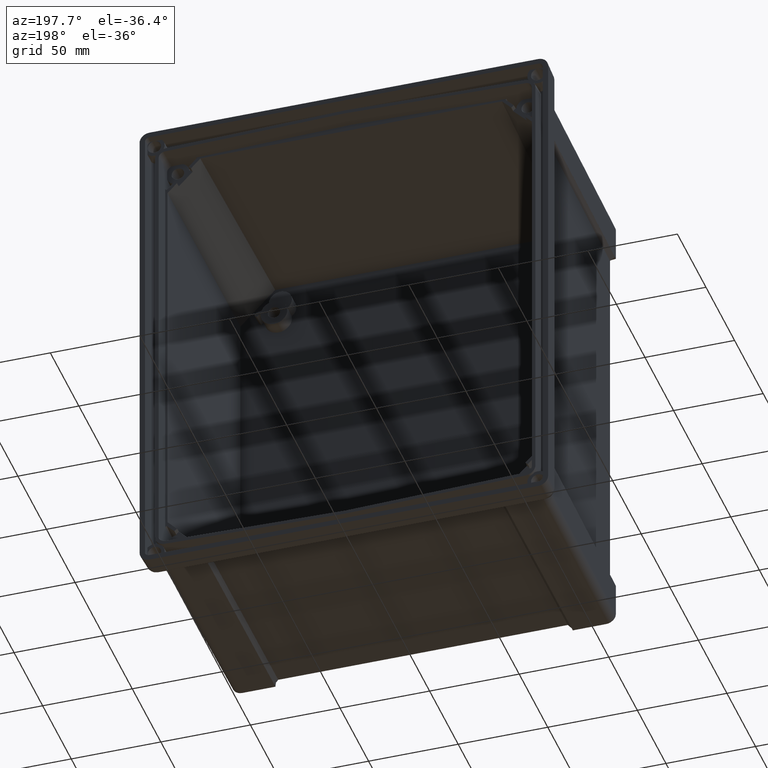
[diagram: clean part render]
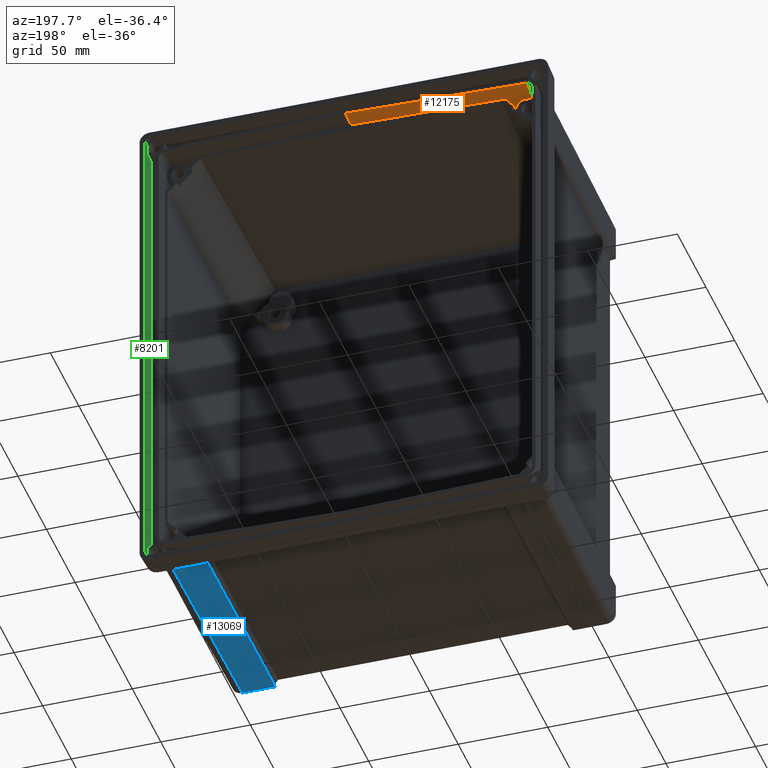
[diagram: same view with three faces highlighted in distinct colors, each labeled with its STEP entity id]
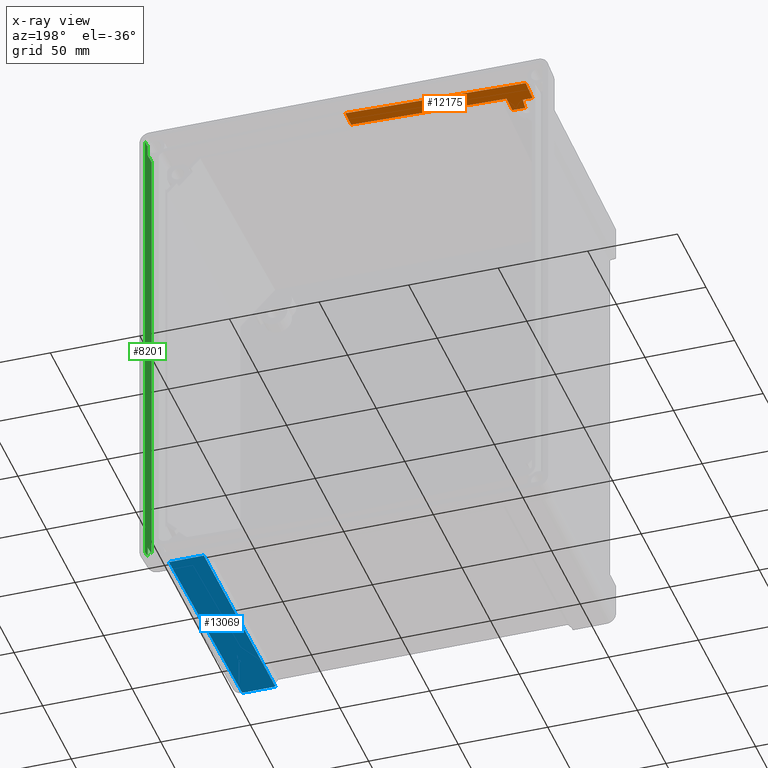
[diagram: x-ray of the same camera — body ghosted, the three highlighted faces saturated]
A machine part, auxiliary view with three faces highlighted in distinct colors.
The next image is the same camera in x-ray (body ghosted, the three faces saturated) — at least one of them is partly hidden behind the body in this view.
Their STEP definitions:

[orange] entity #12175 — the highlighted planar face has unit normal (0.0262, 0.0349, -0.999).
#17 = VERTEX_POINT ( 'NONE', #8950 ) ;
#80 = DIRECTION ( 'NONE',  ( 0.02616100201824144900, 0.03489949670250105200, -0.9990483607430191700 ) ) ;
#187 = EDGE_CURVE ( 'NONE', #10288, #1638, #6947, .T. ) ;
#423 = LINE ( 'NONE', #13724, #3786 ) ;
#609 = DIRECTION ( 'NONE',  ( -0.03487934512674304600, 0.9988137613916394700, 0.03397795370846538200 ) ) ;
#762 = B_SPLINE_CURVE_WITH_KNOTS ( 'NONE', 3,
 ( #11580, #6959, #8116, #11539 ),
 .UNSPECIFIED., .F., .F.,
 ( 4, 4 ),
 ( 2.013173519823810100E-007, 0.007269844731779964900 ),
 .UNSPECIFIED. ) ;
#980 = LINE ( 'NONE', #7053, #1750 ) ;
#1111 = ORIENTED_EDGE ( 'NONE', *, *, #9292, .T. ) ;
#1177 = PLANE ( 'NONE',  #1202 ) ;
#1202 = AXIS2_PLACEMENT_3D ( 'NONE', #9645, #80, #2320 ) ;
#1270 = DIRECTION ( 'NONE',  ( -0.003659257267767887700, 0.9993870572952563400, 0.03481550727730746400 ) ) ;
#1278 = EDGE_LOOP ( 'NONE', ( #7072, #5226, #1111, #8933, #9441, #8083, #11161, #4858, #5528 ) ) ;
#1478 = VERTEX_POINT ( 'NONE', #7876 ) ;
#1500 = LINE ( 'NONE', #10270, #7182 ) ;
#1638 = VERTEX_POINT ( 'NONE', #1976 ) ;
#1667 = CARTESIAN_POINT ( 'NONE',  ( -86.66061782242218200, -12.79291351792849900, 128.6153387022361000 ) ) ;
#1750 = VECTOR ( 'NONE', #8164, 1000.000000000000100 ) ;
#1976 = CARTESIAN_POINT ( 'NONE',  ( -100.7403973115087900, -2.500000000000000000, 128.6062063733010600 ) ) ;
#2110 = VERTEX_POINT ( 'NONE', #6950 ) ;
#2320 = DIRECTION ( 'NONE',  ( 0.0000000000000000000, 0.9993904096895385200, 0.03491144540944078600 ) ) ;
#2843 = CARTESIAN_POINT ( 'NONE',  ( -1.903887510668137200E-014, -12.79291351792850400, 130.8846268436713300 ) ) ;
#3349 = LINE ( 'NONE', #11023, #5266 ) ;
#3702 = CARTESIAN_POINT ( 'NONE',  ( -86.69664986141774000, -2.952131417889984500, 128.9581606532682900 ) ) ;
#3786 = VECTOR ( 'NONE', #13562, 1000.000000000000100 ) ;
#4248 = CARTESIAN_POINT ( 'NONE',  ( -104.1109589307087500, -23.00000000000000000, 127.8018239396758100 ) ) ;
#4588 = DIRECTION ( 'NONE',  ( -0.9996573249755572600, -0.0000000000000000000, -0.02617694830787313200 ) ) ;
#4609 = EDGE_CURVE ( 'NONE', #1478, #1638, #1500, .T. ) ;
#4858 = ORIENTED_EDGE ( 'NONE', *, *, #10635, .F. ) ;
#5192 = VECTOR ( 'NONE', #15142, 1000.000000000000100 ) ;
#5226 = ORIENTED_EDGE ( 'NONE', *, *, #8608, .T. ) ;
#5266 = VECTOR ( 'NONE', #8545, 1000.000000000000000 ) ;
#5346 = VECTOR ( 'NONE', #10000, 1000.000000000000200 ) ;
#5462 = FACE_OUTER_BOUND ( 'NONE', #1278, .T. ) ;
#5511 = CARTESIAN_POINT ( 'NONE',  ( -1.800180194346105700E-014, -2.500000000000000000, 131.2441865161489700 ) ) ;
#5528 = ORIENTED_EDGE ( 'NONE', *, *, #15014, .T. ) ;
#5733 = LINE ( 'NONE', #7568, #5346 ) ;
#6684 = VERTEX_POINT ( 'NONE', #7434 ) ;
#6772 = VECTOR ( 'NONE', #4588, 1000.000000000000100 ) ;
#6947 = LINE ( 'NONE', #7210, #6772 ) ;
#6950 = CARTESIAN_POINT ( 'NONE',  ( -94.87818586973176600, -15.79291351792850400, 128.2953558896519200 ) ) ;
#6959 = CARTESIAN_POINT ( 'NONE',  ( -94.22402692991205700, -20.59264232381585900, 128.1448179655645600 ) ) ;
#7053 = CARTESIAN_POINT ( 'NONE',  ( -99.45715315974962300, -15.79291351792850400, 128.1754514113276300 ) ) ;
#7072 = ORIENTED_EDGE ( 'NONE', *, *, #14139, .T. ) ;
#7182 = VECTOR ( 'NONE', #609, 1000.000000000000100 ) ;
#7210 = CARTESIAN_POINT ( 'NONE',  ( -104.1296983738548100, -2.500000000000000000, 128.5174544015081000 ) ) ;
#7247 = LINE ( 'NONE', #4248, #5192 ) ;
#7342 = VERTEX_POINT ( 'NONE', #2843 ) ;
#7369 = VERTEX_POINT ( 'NONE', #1667 ) ;
#7434 = CARTESIAN_POINT ( 'NONE',  ( -100.3790396424341900, -15.79291351792850400, 128.1513109641963400 ) ) ;
#7568 = CARTESIAN_POINT ( 'NONE',  ( -100.3817819999677700, -12.79291351792850400, 128.2560373732449900 ) ) ;
#7876 = CARTESIAN_POINT ( 'NONE',  ( -100.3815767111774300, -12.79291351792850400, 128.2560426886879800 ) ) ;
#8083 = ORIENTED_EDGE ( 'NONE', *, *, #11844, .T. ) ;
#8116 = CARTESIAN_POINT ( 'NONE',  ( -94.52166425399794000, -18.18872925819711400, 128.2209993282104700 ) ) ;
#8164 = DIRECTION ( 'NONE',  ( -0.9996573249755573700, -0.0000000000000000000, -0.02617694830786865600 ) ) ;
#8245 = CARTESIAN_POINT ( 'NONE',  ( -86.62324455936101200, -23.00000000000000400, 128.2597558566282600 ) ) ;
#8545 = DIRECTION ( 'NONE',  ( 0.0000000000000000000, -0.9993904096895385200, -0.03491144540944078600 ) ) ;
#8608 = EDGE_CURVE ( 'NONE', #2110, #6684, #980, .T. ) ;
#8933 = ORIENTED_EDGE ( 'NONE', *, *, #4609, .T. ) ;
#8950 = CARTESIAN_POINT ( 'NONE',  ( -93.95143904429814100, -23.00000000000000000, 128.0678603306019500 ) ) ;
#9249 = EDGE_CURVE ( 'NONE', #7369, #7342, #423, .T. ) ;
#9292 = EDGE_CURVE ( 'NONE', #6684, #1478, #5733, .T. ) ;
#9441 = ORIENTED_EDGE ( 'NONE', *, *, #187, .F. ) ;
#9645 = CARTESIAN_POINT ( 'NONE',  ( -104.1292413142658800, -3.000000000000000000, 128.5000000000000000 ) ) ;
#10000 = DIRECTION ( 'NONE',  ( -0.0009135623211521280400, 0.9993908270190956500, 0.03488753751661548300 ) ) ;
#10160 = VERTEX_POINT ( 'NONE', #8245 ) ;
#10270 = CARTESIAN_POINT ( 'NONE',  ( -100.7444356046739500, -2.384358414091373400, 128.6101403043347200 ) ) ;
#10288 = VERTEX_POINT ( 'NONE', #5511 ) ;
#10565 = LINE ( 'NONE', #3702, #12047 ) ;
#10635 = EDGE_CURVE ( 'NONE', #10160, #7369, #10565, .T. ) ;
#11023 = CARTESIAN_POINT ( 'NONE',  ( -1.826242724862605300E-014, -3.000000000000000000, 131.2267201461143000 ) ) ;
#11161 = ORIENTED_EDGE ( 'NONE', *, *, #9249, .F. ) ;
#11539 = CARTESIAN_POINT ( 'NONE',  ( -94.87818586973176600, -15.79291351792850400, 128.2953558896519200 ) ) ;
#11580 = CARTESIAN_POINT ( 'NONE',  ( -93.95143904429814100, -23.00000000000000000, 128.0678603306019500 ) ) ;
#11844 = EDGE_CURVE ( 'NONE', #10288, #7342, #3349, .T. ) ;
#12047 = VECTOR ( 'NONE', #1270, 1000.000000000000200 ) ;
#12175 = ADVANCED_FACE ( 'NONE', ( #5462 ), #1177, .T. ) ;
#13562 = DIRECTION ( 'NONE',  ( 0.9996573249755572600, 0.0000000000000000000, 0.02617694830787331600 ) ) ;
#13724 = CARTESIAN_POINT ( 'NONE',  ( 104.0133812135502300, -12.79291351792850400, 133.6083130862753300 ) ) ;
#14139 = EDGE_CURVE ( 'NONE', #17, #2110, #762, .T. ) ;
#15014 = EDGE_CURVE ( 'NONE', #10160, #17, #7247, .T. ) ;
#15142 = DIRECTION ( 'NONE',  ( -0.9996573249755572600, 0.0000000000000000000, -0.02617694830787313200 ) ) ;

[blue] entity #13069 — the highlighted planar face has unit normal (0, -0.0087, -1).
#499 = CARTESIAN_POINT ( 'NONE',  ( 102.5979121214352300, -15.53623604125214200, -133.0977026982880600 ) ) ;
#847 = CARTESIAN_POINT ( 'NONE',  ( 101.5073698747316500, -140.5000000000000000, -132.0071604515844400 ) ) ;
#1024 = DIRECTION ( 'NONE',  ( -1.000000000000000000, -2.603530893875602200E-017, 2.272066990000843700E-019 ) ) ;
#1983 = EDGE_CURVE ( 'NONE', #5572, #8977, #3300, .T. ) ;
#2524 = EDGE_CURVE ( 'NONE', #12562, #5572, #3992, .T. ) ;
#2635 = ORIENTED_EDGE ( 'NONE', *, *, #2524, .T. ) ;
#2886 = CARTESIAN_POINT ( 'NONE',  ( 101.9256144154421700, -15.56263658080148100, -133.0974723042697900 ) ) ;
#3300 = LINE ( 'NONE', #12484, #13475 ) ;
#3485 = CARTESIAN_POINT ( 'NONE',  ( 102.5979121214352300, -15.53623604125214200, -133.0977026982880600 ) ) ;
#3889 = ORIENTED_EDGE ( 'NONE', *, *, #1983, .T. ) ;
#3968 = CARTESIAN_POINT ( 'NONE',  ( 83.10966381665571100, -15.57584166860739200, -133.0973570652143700 ) ) ;
#3992 =( BOUNDED_CURVE ( )  B_SPLINE_CURVE ( 3, ( #14908, #8896, #2886, #499 ),
 .UNSPECIFIED., .F., .F. ) 
 B_SPLINE_CURVE_WITH_KNOTS ( ( 4, 4 ),
 ( 4.405368760606519300, 4.459397191892362500 ),
 .UNSPECIFIED. ) 
 CURVE ( )  GEOMETRIC_REPRESENTATION_ITEM ( )  RATIONAL_B_SPLINE_CURVE ( ( 1.000000000000000000, 0.9997567588440701100, 0.9997567588440701100, 1.000000000000000000 ) ) 
 REPRESENTATION_ITEM ( '' )  );
#4420 = CARTESIAN_POINT ( 'NONE',  ( 114.0000000000000100, -14.00000000000000200, -133.1111092271154300 ) ) ;
#4470 = ORIENTED_EDGE ( 'NONE', *, *, #7027, .T. ) ;
#4778 = EDGE_CURVE ( 'NONE', #12562, #13307, #15253, .T. ) ;
#5538 = PLANE ( 'NONE',  #10158 ) ;
#5572 = VERTEX_POINT ( 'NONE', #3485 ) ;
#6489 = ORIENTED_EDGE ( 'NONE', *, *, #11055, .T. ) ;
#7027 = EDGE_CURVE ( 'NONE', #8977, #10661, #11964, .T. ) ;
#7196 = CARTESIAN_POINT ( 'NONE',  ( 83.11113521231776200, -13.97166994047502400, -133.1113564597994200 ) ) ;
#7733 = LINE ( 'NONE', #7196, #8096 ) ;
#7945 = DIRECTION ( 'NONE',  ( 0.0000000000000000000, -0.008726535498373953800, -0.9999619230641713100 ) ) ;
#8096 = VECTOR ( 'NONE', #11958, 999.9999999999998900 ) ;
#8167 = DIRECTION ( 'NONE',  ( -1.000000000000000000, 0.0000000000000000000, 0.0000000000000000000 ) ) ;
#8655 = ORIENTED_EDGE ( 'NONE', *, *, #4778, .F. ) ;
#8689 = EDGE_LOOP ( 'NONE', ( #8655, #2635, #3889, #4470, #14313, #6489 ) ) ;
#8896 = CARTESIAN_POINT ( 'NONE',  ( 101.2553797658274400, -15.57584166860739000, -133.0973570652143700 ) ) ;
#8929 = VERTEX_POINT ( 'NONE', #14967 ) ;
#8977 = VERTEX_POINT ( 'NONE', #847 ) ;
#9485 = CARTESIAN_POINT ( 'NONE',  ( 107.0246141871661100, -140.5000000000000000, -132.0071604515844400 ) ) ;
#10097 = DIRECTION ( 'NONE',  ( -0.008726203243944236400, -0.9999238504775704900, 0.008726203243944238200 ) ) ;
#10158 = AXIS2_PLACEMENT_3D ( 'NONE', #4420, #7945, #15318 ) ;
#10661 = VERTEX_POINT ( 'NONE', #12132 ) ;
#11055 = EDGE_CURVE ( 'NONE', #8929, #13307, #7733, .T. ) ;
#11215 = VECTOR ( 'NONE', #11691, 1000.000000000000000 ) ;
#11599 = VECTOR ( 'NONE', #8167, 1000.000000000000000 ) ;
#11691 = DIRECTION ( 'NONE',  ( -0.007857165312980526200, 0.9999310562397356600, -0.008726266127677984400 ) ) ;
#11958 = DIRECTION ( 'NONE',  ( 0.0009171954542809098600, 0.9999615024563482900, -0.008726531827785091400 ) ) ;
#11964 = LINE ( 'NONE', #9485, #11599 ) ;
#12060 = VECTOR ( 'NONE', #1024, 1000.000000000000000 ) ;
#12132 = CARTESIAN_POINT ( 'NONE',  ( 83.01262941092744500, -140.5000000000000000, -132.0071604515844400 ) ) ;
#12177 = FACE_OUTER_BOUND ( 'NONE', #8689, .T. ) ;
#12484 = CARTESIAN_POINT ( 'NONE',  ( 102.6121858598884600, -13.90062761959726600, -133.1119764367412900 ) ) ;
#12562 = VERTEX_POINT ( 'NONE', #13043 ) ;
#13043 = CARTESIAN_POINT ( 'NONE',  ( 100.5876972585438400, -15.57584166860738200, -133.0973570652143400 ) ) ;
#13060 = CARTESIAN_POINT ( 'NONE',  ( 82.99839734801642500, -138.6887765966205000, -132.0229667587652800 ) ) ;
#13069 = ADVANCED_FACE ( 'NONE', ( #12177 ), #5538, .T. ) ;
#13307 = VERTEX_POINT ( 'NONE', #3968 ) ;
#13475 = VECTOR ( 'NONE', #10097, 1000.000000000000100 ) ;
#14313 = ORIENTED_EDGE ( 'NONE', *, *, #15146, .T. ) ;
#14380 = LINE ( 'NONE', #13060, #11215 ) ;
#14908 = CARTESIAN_POINT ( 'NONE',  ( 100.5876972585438400, -15.57584166860738200, -133.0973570652143400 ) ) ;
#14967 = CARTESIAN_POINT ( 'NONE',  ( 82.99691399682174600, -138.5000000000000000, -132.0246141871659500 ) ) ;
#15146 = EDGE_CURVE ( 'NONE', #10661, #8929, #14380, .T. ) ;
#15253 = LINE ( 'NONE', #15458, #12060 ) ;
#15318 = DIRECTION ( 'NONE',  ( 0.0000000000000000000, 0.9999619230641713100, -0.008726535498373953800 ) ) ;
#15458 = CARTESIAN_POINT ( 'NONE',  ( 114.0000000000000100, -15.57584166860738200, -133.0973570652143400 ) ) ;

[green] entity #8201 — the highlighted planar face has unit normal (0.9994, -0.0349, 0).
#290 = CARTESIAN_POINT ( 'NONE',  ( 110.7311537034877500, -7.646385446313329800, 135.2326766359400100 ) ) ;
#357 = CARTESIAN_POINT ( 'NONE',  ( 110.8584882891365700, -4.000000000000000000, -140.9999999999999700 ) ) ;
#781 = B_SPLINE_CURVE_WITH_KNOTS ( 'NONE', 3,
 ( #11302, #4138, #2877, #14734 ),
 .UNSPECIFIED., .F., .F.,
 ( 4, 4 ),
 ( 2.007459996541800200E-007, 0.006545310549581722500 ),
 .UNSPECIFIED. ) ;
#1322 = CARTESIAN_POINT ( 'NONE',  ( 110.6307040684552600, -10.52288663728130500, -129.2881356725480400 ) ) ;
#1337 = EDGE_CURVE ( 'NONE', #4600, #7282, #13305, .T. ) ;
#1415 = DIRECTION ( 'NONE',  ( -1.476360405086645000E-016, -0.0000000000000000000, 1.000000000000000000 ) ) ;
#1477 = EDGE_CURVE ( 'NONE', #6064, #9189, #12367, .T. ) ;
#1549 = DIRECTION ( 'NONE',  ( -0.03487826274237469000, -0.9987827659587182900, -0.03487826274237469700 ) ) ;
#1802 = CARTESIAN_POINT ( 'NONE',  ( 110.7825846518157400, -6.173595783412380900, 129.6043729308366600 ) ) ;
#2096 = VECTOR ( 'NONE', #5050, 1000.000000000000000 ) ;
#2877 = CARTESIAN_POINT ( 'NONE',  ( 110.7066540587782000, -8.347963477558874200, -129.4425404225065700 ) ) ;
#2957 = CARTESIAN_POINT ( 'NONE',  ( 110.8584882891365700, -4.000000000000000000, -140.9999999999999700 ) ) ;
#2963 = LINE ( 'NONE', #9354, #6743 ) ;
#3016 = DIRECTION ( 'NONE',  ( -1.476360405086645000E-016, -0.0000000000000000000, 1.000000000000000000 ) ) ;
#3051 = ORIENTED_EDGE ( 'NONE', *, *, #9850, .F. ) ;
#3273 = LINE ( 'NONE', #2957, #8539 ) ;
#3705 = DIRECTION ( 'NONE',  ( 1.476321991264318700E-016, -1.100027945693398900E-019, -1.000000000000000000 ) ) ;
#4138 = CARTESIAN_POINT ( 'NONE',  ( 110.7825846518157800, -6.173595783412380900, -129.6043729308367200 ) ) ;
#4443 = EDGE_CURVE ( 'NONE', #7282, #15370, #13968, .T. ) ;
#4600 = VERTEX_POINT ( 'NONE', #15021 ) ;
#4853 = EDGE_LOOP ( 'NONE', ( #6449, #8302, #14107, #5912, #3051, #7702, #5694, #6989 ) ) ;
#4958 = CARTESIAN_POINT ( 'NONE',  ( 111.0018275189427300, 0.1046984901075031500, -140.9999999999999700 ) ) ;
#5050 = DIRECTION ( 'NONE',  ( 1.476360405086645000E-016, -0.0000000000000000000, -1.000000000000000000 ) ) ;
#5315 = VECTOR ( 'NONE', #3705, 1000.000000000000000 ) ;
#5694 = ORIENTED_EDGE ( 'NONE', *, *, #1337, .F. ) ;
#5912 = ORIENTED_EDGE ( 'NONE', *, *, #1477, .T. ) ;
#6064 = VERTEX_POINT ( 'NONE', #7367 ) ;
#6449 = ORIENTED_EDGE ( 'NONE', *, *, #8381, .T. ) ;
#6552 = EDGE_CURVE ( 'NONE', #12102, #4600, #2963, .T. ) ;
#6743 = VECTOR ( 'NONE', #13017, 1000.000000000000100 ) ;
#6989 = ORIENTED_EDGE ( 'NONE', *, *, #6552, .F. ) ;
#7282 = VERTEX_POINT ( 'NONE', #9733 ) ;
#7367 = CARTESIAN_POINT ( 'NONE',  ( 110.6307040684552300, -10.52288663728130500, 129.2881356725479800 ) ) ;
#7422 = FACE_OUTER_BOUND ( 'NONE', #4853, .T. ) ;
#7506 = CARTESIAN_POINT ( 'NONE',  ( 110.9981713671035500, 0.0000000000000000000, -140.9999999999999700 ) ) ;
#7602 = DIRECTION ( 'NONE',  ( 0.03489949670250104600, 0.9993908270190956500, 0.0000000000000000000 ) ) ;
#7702 = ORIENTED_EDGE ( 'NONE', *, *, #4443, .F. ) ;
#7840 = EDGE_CURVE ( 'NONE', #9439, #13572, #781, .T. ) ;
#8172 = CARTESIAN_POINT ( 'NONE',  ( 110.8584882891365700, -4.000000000000000000, -135.3600112215887600 ) ) ;
#8201 = ADVANCED_FACE ( 'NONE', ( #7422 ), #8705, .F. ) ;
#8302 = ORIENTED_EDGE ( 'NONE', *, *, #7840, .T. ) ;
#8314 = VECTOR ( 'NONE', #1549, 1000.000000000000100 ) ;
#8381 = EDGE_CURVE ( 'NONE', #12102, #9439, #3273, .T. ) ;
#8539 = VECTOR ( 'NONE', #3016, 1000.000000000000000 ) ;
#8705 = PLANE ( 'NONE',  #10153 ) ;
#9037 = CARTESIAN_POINT ( 'NONE',  ( 110.6307040684552300, -10.52288663728130500, 129.2881356725479800 ) ) ;
#9097 = LINE ( 'NONE', #357, #2096 ) ;
#9189 = VERTEX_POINT ( 'NONE', #13077 ) ;
#9354 = CARTESIAN_POINT ( 'NONE',  ( 111.0085141558069500, 0.2961787169620379600, -135.5100370882591400 ) ) ;
#9374 = VECTOR ( 'NONE', #1415, 1000.000000000000000 ) ;
#9439 = VERTEX_POINT ( 'NONE', #11061 ) ;
#9733 = CARTESIAN_POINT ( 'NONE',  ( 110.9981713671035200, 0.0000000000000000000, 135.4996942995557800 ) ) ;
#9742 = EDGE_CURVE ( 'NONE', #6064, #13572, #12824, .T. ) ;
#9850 = EDGE_CURVE ( 'NONE', #15370, #9189, #9097, .T. ) ;
#10153 = AXIS2_PLACEMENT_3D ( 'NONE', #4958, #14766, #7602 ) ;
#11061 = CARTESIAN_POINT ( 'NONE',  ( 110.8584882891365700, -4.000000000000000000, -129.7765275305183900 ) ) ;
#11302 = CARTESIAN_POINT ( 'NONE',  ( 110.8584882891365700, -4.000000000000000000, -129.7765275305183900 ) ) ;
#11446 = CARTESIAN_POINT ( 'NONE',  ( 110.7066540587781600, -8.347963477558872500, 129.4425404225065400 ) ) ;
#12093 = CARTESIAN_POINT ( 'NONE',  ( 110.6307040684552600, -10.52288663728130500, -140.9999999999999700 ) ) ;
#12102 = VERTEX_POINT ( 'NONE', #8172 ) ;
#12367 = B_SPLINE_CURVE_WITH_KNOTS ( 'NONE', 3,
 ( #9037, #11446, #1802, #15056 ),
 .UNSPECIFIED., .F., .F.,
 ( 4, 4 ),
 ( 2.006234786540848200E-007, 0.006545310427060720500 ),
 .UNSPECIFIED. ) ;
#12824 = LINE ( 'NONE', #12093, #5315 ) ;
#13017 = DIRECTION ( 'NONE',  ( 0.03487826274237470400, 0.9987827659587182900, -0.03487826274237469000 ) ) ;
#13077 = CARTESIAN_POINT ( 'NONE',  ( 110.8584882891365300, -4.000000000000000000, 129.7765275305183100 ) ) ;
#13305 = LINE ( 'NONE', #7506, #9374 ) ;
#13429 = CARTESIAN_POINT ( 'NONE',  ( 110.8584882891365300, -4.000000000000000000, 135.3600112215887600 ) ) ;
#13572 = VERTEX_POINT ( 'NONE', #1322 ) ;
#13968 = LINE ( 'NONE', #290, #8314 ) ;
#14107 = ORIENTED_EDGE ( 'NONE', *, *, #9742, .F. ) ;
#14734 = CARTESIAN_POINT ( 'NONE',  ( 110.6307040684552600, -10.52288663728130500, -129.2881356725480400 ) ) ;
#14766 = DIRECTION ( 'NONE',  ( 0.9993908270190957600, -0.03489949670250105200, 1.475461046217789300E-016 ) ) ;
#15021 = CARTESIAN_POINT ( 'NONE',  ( 110.9981713671035700, 0.0000000000000000000, -135.4996942995557600 ) ) ;
#15056 = CARTESIAN_POINT ( 'NONE',  ( 110.8584882891365300, -4.000000000000000000, 129.7765275305183100 ) ) ;
#15370 = VERTEX_POINT ( 'NONE', #13429 ) ;